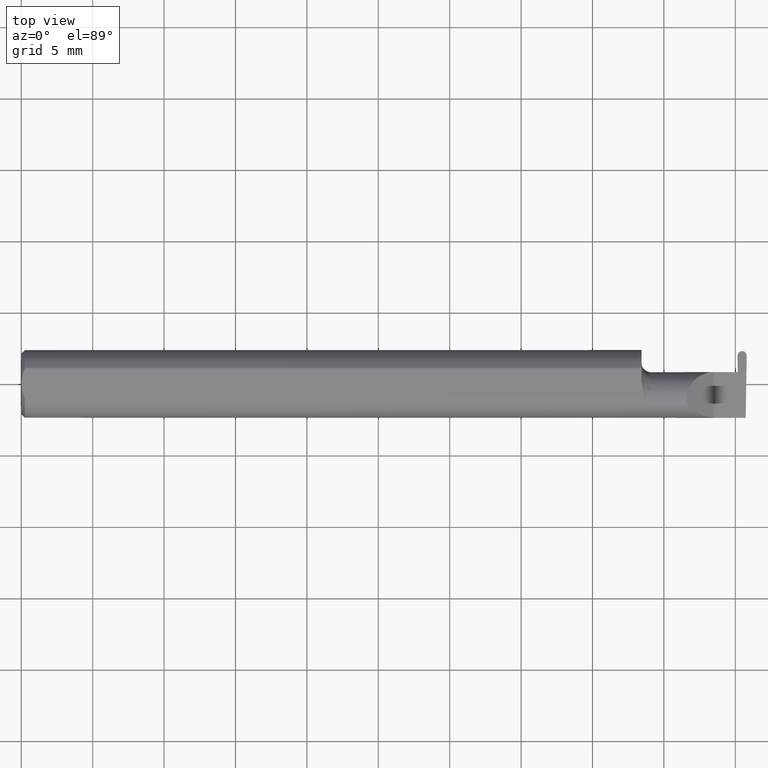
[diagram: clean part render]
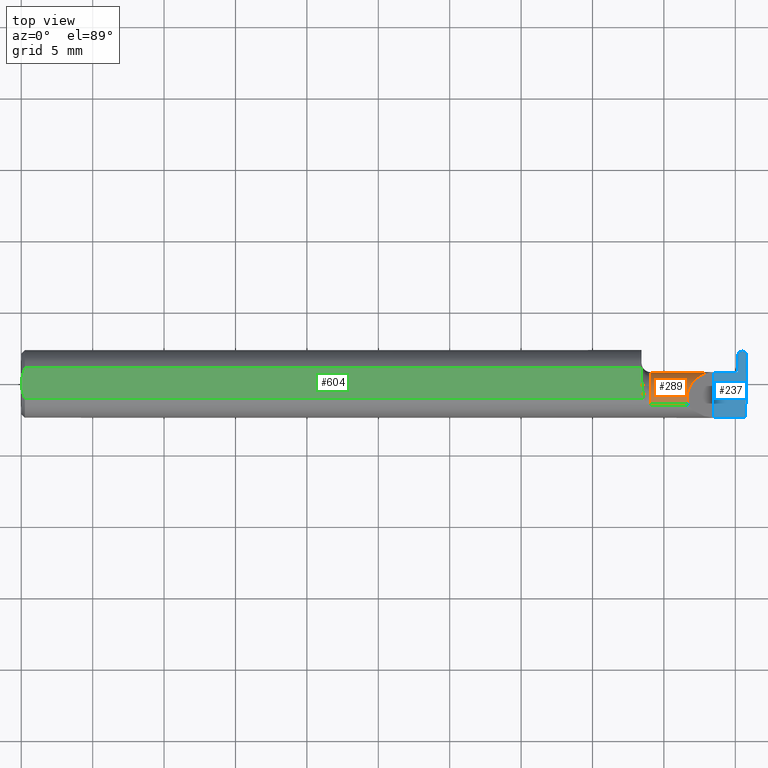
[diagram: same view with three faces highlighted in distinct colors, each labeled with its STEP entity id]
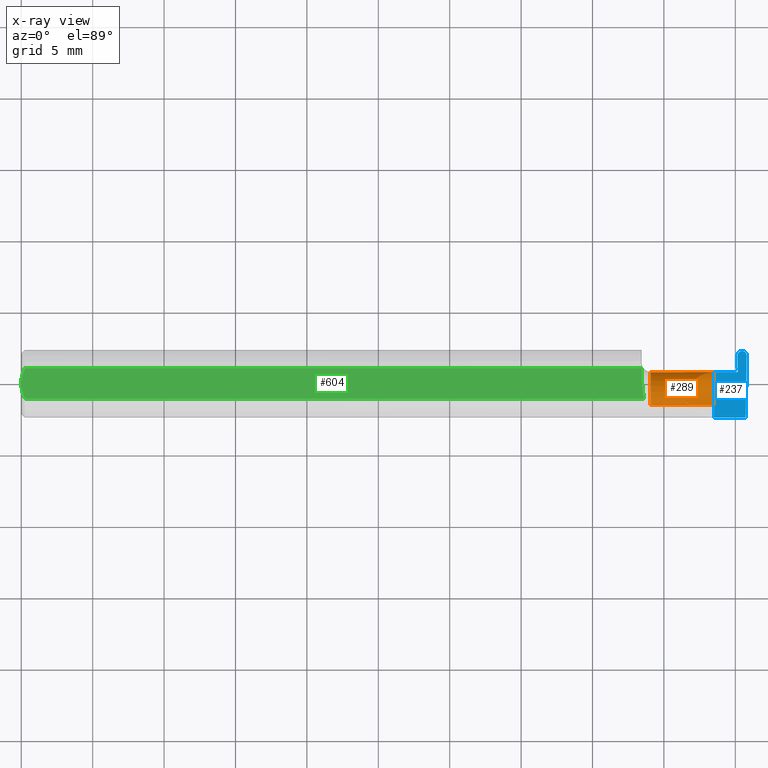
[diagram: x-ray of the same camera — body ghosted, the three highlighted faces saturated]
A machine part, top view with three faces highlighted in distinct colors.
The next image is the same camera in x-ray (body ghosted, the three faces saturated) — at least one of them is partly hidden behind the body in this view.
Their STEP definitions:

[orange] entity #289 — the highlighted cylindrical surface (edge-blend (fillet) strip) has radius 1.905 mm, axis along (-1, -0, -0).
#11 = VERTEX_POINT ( 'NONE', #413 ) ;
#35 = ORIENTED_EDGE ( 'NONE', *, *, #66, .F. ) ;
#37 = CARTESIAN_POINT ( 'NONE',  ( 1.709999999999999964, 0.03239999999999998437, 3.551475717527338624E-17 ) ) ;
#38 = CARTESIAN_POINT ( 'NONE',  ( 1.969248479888576320, 0.03239999999999999825, 0.000000000000000000 ) ) ;
#53 = VERTEX_POINT ( 'NONE', #203 ) ;
#66 = EDGE_CURVE ( 'NONE', #377, #362, #625, .T. ) ;
#71 = CARTESIAN_POINT ( 'NONE',  ( 1.734999999999999876, -0.05810704225352093799, 0.07337936794867844226 ) ) ;
#72 = CARTESIAN_POINT ( 'NONE',  ( 1.975446786689251333, 0.03221730376948541558, -0.005231735530809524318 ) ) ;
#90 = CARTESIAN_POINT ( 'NONE',  ( 1.910000000000000142, 0.03240000000000001906, 3.551475717527338624E-17 ) ) ;
#101 = AXIS2_PLACEMENT_3D ( 'NONE', #556, #457, #402 ) ;
#110 = DIRECTION ( 'NONE',  ( -1.000000000000000000, -0.000000000000000000, -0.000000000000000000 ) ) ;
#112 = CARTESIAN_POINT ( 'NONE',  ( 1.976921122959496957, 0.02931965133412154506, -0.04667009593691548441 ) ) ;
#114 = CARTESIAN_POINT ( 'NONE',  ( 1.995283749808152374, -0.04259999999999949244, -0.07500000000000002498 ) ) ;
#122 = EDGE_CURVE ( 'NONE', #53, #11, #281, .T. ) ;
#133 = CARTESIAN_POINT ( 'NONE',  ( 1.854736604999999816, -0.05810704225352100738, 0.07337936794867837287 ) ) ;
#137 = CARTESIAN_POINT ( 'NONE',  ( 1.977964271591899248, -0.001060451341131600630, -0.07500000000000006661 ) ) ;
#139 = VERTEX_POINT ( 'NONE', #435 ) ;
#160 = AXIS2_PLACEMENT_3D ( 'NONE', #243, #444, #177 ) ;
#177 = DIRECTION ( 'NONE',  ( 0.000000000000000000, -1.000000000000000000, 0.000000000000000000 ) ) ;
#184 = CARTESIAN_POINT ( 'NONE',  ( 1.969065783658062951, 0.03221730376948678254, -0.005231735530810288463 ) ) ;
#190 = CARTESIAN_POINT ( 'NONE',  ( 1.969065783658062951, 0.03221730376948678254, -0.005231735530810288463 ) ) ;
#198 = ORIENTED_EDGE ( 'NONE', *, *, #617, .F. ) ;
#203 = CARTESIAN_POINT ( 'NONE',  ( 1.995283749808152374, -0.04259999999999949244, -0.07500000000000002498 ) ) ;
#205 = VECTOR ( 'NONE', #110, 39.37007874015748143 ) ;
#243 = CARTESIAN_POINT ( 'NONE',  ( 1.734999999999999876, -0.04260000000000008225, 0.000000000000000000 ) ) ;
#260 = B_SPLINE_CURVE_WITH_KNOTS ( 'NONE', 3,
 ( #190, #318, #410, #38 ),
 .UNSPECIFIED., .F., .F.,
 ( 4, 4 ),
 ( 0.000000000000000000, 1.000000000000000000 ),
 .UNSPECIFIED. ) ;
#267 = CARTESIAN_POINT ( 'NONE',  ( 1.995069675717878299, -0.05810704225352097962, -0.07337936794867837287 ) ) ;
#270 =( BOUNDED_CURVE ( )  B_SPLINE_CURVE ( 3, ( #311, #302, #366, #461 ),
 .UNSPECIFIED., .F., .T. ) 
 B_SPLINE_CURVE_WITH_KNOTS ( ( 4, 4 ),
 ( 6.074922494366329140, 7.853981633974482790 ),
 .UNSPECIFIED. ) 
 CURVE ( )  GEOMETRIC_REPRESENTATION_ITEM ( )  RATIONAL_B_SPLINE_CURVE ( ( 1.000000000000000000, 0.7531850099525143616, 0.7531850099525143616, 1.000000000000000000 ) ) 
 REPRESENTATION_ITEM ( '' )  );
#281 = LINE ( 'NONE', #390, #205 ) ;
#282 = VERTEX_POINT ( 'NONE', #454 ) ;
#284 = EDGE_CURVE ( 'NONE', #535, #282, #530, .T. ) ;
#288 = ORIENTED_EDGE ( 'NONE', *, *, #401, .T. ) ;
#289 = ADVANCED_FACE ( 'NONE', ( #395 ), #353, .T. ) ;
#300 = DIRECTION ( 'NONE',  ( 1.000000000000000000, 1.613967815530507848E-16, 0.000000000000000000 ) ) ;
#302 = CARTESIAN_POINT ( 'NONE',  ( 1.825958805822864628, -0.007655250284932180876, 0.08404119417713473705 ) ) ;
#311 = CARTESIAN_POINT ( 'NONE',  ( 1.836620632051321200, -0.05810704225352119473, 0.07337936794867828960 ) ) ;
#318 = CARTESIAN_POINT ( 'NONE',  ( 1.969126682401567408, 0.03227820251299119009, -0.003487823687206865336 ) ) ;
#341 = CARTESIAN_POINT ( 'NONE',  ( 1.975446786689251333, 0.03221730376948541558, -0.005231735530809524318 ) ) ;
#353 = CYLINDRICAL_SURFACE ( 'NONE', #101, 0.07500000000000006661 ) ;
#356 = LINE ( 'NONE', #37, #650 ) ;
#362 = VERTEX_POINT ( 'NONE', #184 ) ;
#364 = DIRECTION ( 'NONE',  ( -1.000000000000000000, -1.613967815530507848E-16, -0.000000000000000000 ) ) ;
#366 = CARTESIAN_POINT ( 'NONE',  ( 1.858433946715231766, 0.03240000000000000518, 0.05156605328476855654 ) ) ;
#371 = CARTESIAN_POINT ( 'NONE',  ( 1.836620632051321200, -0.05810704225352119473, 0.07337936794867828960 ) ) ;
#377 = VERTEX_POINT ( 'NONE', #341 ) ;
#389 = CARTESIAN_POINT ( 'NONE',  ( 1.995121087504817758, -0.05300374992736033020, -0.07445783144524582842 ) ) ;
#390 = CARTESIAN_POINT ( 'NONE',  ( 2.115884466375952844, -0.04259999999999949244, -0.07500000000000002498 ) ) ;
#393 = ORIENTED_EDGE ( 'NONE', *, *, #458, .T. ) ;
#395 = FACE_OUTER_BOUND ( 'NONE', #660, .T. ) ;
#401 = EDGE_CURVE ( 'NONE', #691, #455, #270, .T. ) ;
#402 = DIRECTION ( 'NONE',  ( 0.000000000000000000, -1.000000000000000000, 0.000000000000000000 ) ) ;
#410 = CARTESIAN_POINT ( 'NONE',  ( 1.969187581145071642, 0.03233910125649559070, -0.001743911843603432451 ) ) ;
#412 = CARTESIAN_POINT ( 'NONE',  ( 1.854736604999999816, -0.05810704225352100738, -0.07337936794867837287 ) ) ;
#413 = CARTESIAN_POINT ( 'NONE',  ( 1.978015756548945348, -0.04260000000000003367, -0.07500000000000003886 ) ) ;
#414 =( BOUNDED_CURVE ( )  B_SPLINE_CURVE ( 3, ( #669, #137, #112, #72 ),
 .UNSPECIFIED., .F., .T. ) 
 B_SPLINE_CURVE_WITH_KNOTS ( ( 4, 4 ),
 ( 3.176499238629675315, 4.677482395344795485 ),
 .UNSPECIFIED. ) 
 CURVE ( )  GEOMETRIC_REPRESENTATION_ITEM ( )  RATIONAL_B_SPLINE_CURVE ( ( 1.000000000000000000, 0.8209024677461143060, 0.8209024677461143060, 1.000000000000000000 ) ) 
 REPRESENTATION_ITEM ( '' )  );
#425 = CARTESIAN_POINT ( 'NONE',  ( 1.709999999999999964, 0.03221730376948644947, -0.005231735530814581037 ) ) ;
#435 = CARTESIAN_POINT ( 'NONE',  ( 1.995069675717878299, -0.05810704225352097962, -0.07337936794867837287 ) ) ;
#440 = ORIENTED_EDGE ( 'NONE', *, *, #696, .F. ) ;
#444 = DIRECTION ( 'NONE',  ( -1.000000000000000000, -1.613967815530507848E-16, -0.000000000000000000 ) ) ;
#454 = CARTESIAN_POINT ( 'NONE',  ( 1.734999999999999876, -0.05810704225352095881, -0.07337936794867842838 ) ) ;
#455 = VERTEX_POINT ( 'NONE', #90 ) ;
#457 = DIRECTION ( 'NONE',  ( -1.000000000000000000, -1.613967815530507848E-16, -0.000000000000000000 ) ) ;
#458 = EDGE_CURVE ( 'NONE', #535, #691, #471, .T. ) ;
#461 = CARTESIAN_POINT ( 'NONE',  ( 1.910000000000000142, 0.03240000000000001906, 3.551475717527338624E-17 ) ) ;
#467 = EDGE_CURVE ( 'NONE', #455, #637, #356, .T. ) ;
#471 = LINE ( 'NONE', #133, #609 ) ;
#476 = ORIENTED_EDGE ( 'NONE', *, *, #122, .F. ) ;
#510 = ORIENTED_EDGE ( 'NONE', *, *, #622, .T. ) ;
#511 = DIRECTION ( 'NONE',  ( 1.000000000000000000, 1.613967815530507848E-16, 0.000000000000000000 ) ) ;
#526 = EDGE_CURVE ( 'NONE', #11, #377, #414, .T. ) ;
#530 = CIRCLE ( 'NONE', #160, 0.07500000000000010825 ) ;
#535 = VERTEX_POINT ( 'NONE', #71 ) ;
#540 = ORIENTED_EDGE ( 'NONE', *, *, #284, .F. ) ;
#553 = VECTOR ( 'NONE', #364, 39.37007874015748143 ) ;
#554 =( BOUNDED_CURVE ( )  B_SPLINE_CURVE ( 3, ( #267, #389, #690, #114 ),
 .UNSPECIFIED., .F., .T. ) 
 B_SPLINE_CURVE_WITH_KNOTS ( ( 4, 4 ),
 ( 0.2552020043920386616, 0.4634648172053001391 ),
 .UNSPECIFIED. ) 
 CURVE ( )  GEOMETRIC_REPRESENTATION_ITEM ( )  RATIONAL_B_SPLINE_CURVE ( ( 1.000000000000000000, 0.9963888149483992596, 0.9963888149483992596, 1.000000000000000000 ) ) 
 REPRESENTATION_ITEM ( '' )  );
#556 = CARTESIAN_POINT ( 'NONE',  ( 1.709999999999999964, -0.04260000000000008225, 0.000000000000000000 ) ) ;
#584 = ORIENTED_EDGE ( 'NONE', *, *, #526, .F. ) ;
#609 = VECTOR ( 'NONE', #511, 39.37007874015748143 ) ;
#617 = EDGE_CURVE ( 'NONE', #362, #637, #260, .T. ) ;
#622 = EDGE_CURVE ( 'NONE', #139, #282, #674, .T. ) ;
#625 = LINE ( 'NONE', #425, #553 ) ;
#637 = VERTEX_POINT ( 'NONE', #683 ) ;
#650 = VECTOR ( 'NONE', #300, 39.37007874015748143 ) ;
#654 = ORIENTED_EDGE ( 'NONE', *, *, #467, .T. ) ;
#660 = EDGE_LOOP ( 'NONE', ( #510, #540, #393, #288, #654, #198, #35, #584, #476, #440 ) ) ;
#669 = CARTESIAN_POINT ( 'NONE',  ( 1.978015756548945348, -0.04260000000000003367, -0.07500000000000003886 ) ) ;
#674 = LINE ( 'NONE', #412, #689 ) ;
#683 = CARTESIAN_POINT ( 'NONE',  ( 1.969248479888576320, 0.03239999999999999825, 0.000000000000000000 ) ) ;
#687 = DIRECTION ( 'NONE',  ( -1.000000000000000000, -1.613967815530507848E-16, -0.000000000000000000 ) ) ;
#689 = VECTOR ( 'NONE', #687, 39.37007874015748143 ) ;
#690 = CARTESIAN_POINT ( 'NONE',  ( 1.995192704155888785, -0.04781600192481490208, -0.07500000000000012212 ) ) ;
#691 = VERTEX_POINT ( 'NONE', #371 ) ;
#696 = EDGE_CURVE ( 'NONE', #139, #53, #554, .T. ) ;

[blue] entity #237 — the highlighted planar face has unit normal (-0, 0, -1).
#6 = CARTESIAN_POINT ( 'NONE',  ( 1.974486369625657378, 0.07677130609030106967, 0.000000000000000000 ) ) ;
#10 = DIRECTION ( 'NONE',  ( -0.000000000000000000, 1.000000000000000000, -0.000000000000000000 ) ) ;
#17 = LINE ( 'NONE', #657, #125 ) ;
#27 = LINE ( 'NONE', #370, #172 ) ;
#34 = EDGE_CURVE ( 'NONE', #57, #470, #27, .T. ) ;
#37 = CARTESIAN_POINT ( 'NONE',  ( 1.709999999999999964, 0.03239999999999998437, 3.551475717527338624E-17 ) ) ;
#43 = VERTEX_POINT ( 'NONE', #319 ) ;
#54 = DIRECTION ( 'NONE',  ( -1.224646799147358877E-16, 0.000000000000000000, -1.000000000000000000 ) ) ;
#57 = VERTEX_POINT ( 'NONE', #417 ) ;
#67 = CARTESIAN_POINT ( 'NONE',  ( 1.999986840374342822, 0.07677130609030106967, 0.000000000000000000 ) ) ;
#80 = CARTESIAN_POINT ( 'NONE',  ( 1.975260873654413052, 0.03239999999999999825, 0.000000000000000000 ) ) ;
#83 = LINE ( 'NONE', #80, #335 ) ;
#90 = CARTESIAN_POINT ( 'NONE',  ( 1.910000000000000142, 0.03240000000000001906, 3.551475717527338624E-17 ) ) ;
#108 = VERTEX_POINT ( 'NONE', #223 ) ;
#118 = ORIENTED_EDGE ( 'NONE', *, *, #283, .T. ) ;
#120 =( BOUNDED_CURVE ( )  B_SPLINE_CURVE ( 3, ( #67, #552, #407, #350 ),
 .UNSPECIFIED., .F., .T. ) 
 B_SPLINE_CURVE_WITH_KNOTS ( ( 4, 4 ),
 ( 1.672436806532649367, 3.247686724355377752 ),
 .UNSPECIFIED. ) 
 CURVE ( )  GEOMETRIC_REPRESENTATION_ITEM ( )  RATIONAL_B_SPLINE_CURVE ( ( 1.000000000000000000, 0.8036869647627060687, 0.8036869647627060687, 1.000000000000000000 ) ) 
 REPRESENTATION_ITEM ( '' )  );
#125 = VECTOR ( 'NONE', #236, 39.37007874015748143 ) ;
#134 = ORIENTED_EDGE ( 'NONE', *, *, #384, .F. ) ;
#140 = EDGE_CURVE ( 'NONE', #108, #470, #396, .T. ) ;
#148 = EDGE_CURVE ( 'NONE', #487, #455, #157, .T. ) ;
#151 = ORIENTED_EDGE ( 'NONE', *, *, #588, .F. ) ;
#157 = LINE ( 'NONE', #381, #355 ) ;
#158 = ORIENTED_EDGE ( 'NONE', *, *, #642, .F. ) ;
#168 = VERTEX_POINT ( 'NONE', #226 ) ;
#170 = CARTESIAN_POINT ( 'NONE',  ( 1.987065021309431190, 0.09039999999999999425, 0.000000000000000000 ) ) ;
#172 = VECTOR ( 'NONE', #475, 39.37007874015747433 ) ;
#186 = VERTEX_POINT ( 'NONE', #376 ) ;
#202 = LINE ( 'NONE', #619, #506 ) ;
#220 = DIRECTION ( 'NONE',  ( -1.000000000000000000, 0.000000000000000000, 1.224646799147358877E-16 ) ) ;
#223 = CARTESIAN_POINT ( 'NONE',  ( 1.987065021309431190, 0.09039999999999999425, 0.000000000000000000 ) ) ;
#226 = CARTESIAN_POINT ( 'NONE',  ( 1.997012998164632958, -0.09360000000000001652, 0.000000000000000000 ) ) ;
#236 = DIRECTION ( 'NONE',  ( -1.000000000000000000, -0.000000000000000000, -0.000000000000000000 ) ) ;
#237 = ADVANCED_FACE ( 'NONE', ( #266 ), #638, .F. ) ;
#239 = DIRECTION ( 'NONE',  ( 1.000000000000000000, -0.000000000000000000, -0.000000000000000000 ) ) ;
#266 = FACE_OUTER_BOUND ( 'NONE', #373, .T. ) ;
#283 = EDGE_CURVE ( 'NONE', #43, #186, #120, .T. ) ;
#293 = AXIS2_PLACEMENT_3D ( 'NONE', #536, #54, #220 ) ;
#300 = DIRECTION ( 'NONE',  ( 1.000000000000000000, 1.613967815530507848E-16, 0.000000000000000000 ) ) ;
#301 = EDGE_CURVE ( 'NONE', #168, #487, #17, .T. ) ;
#306 = CARTESIAN_POINT ( 'NONE',  ( 1.910000000000000142, -0.09360000000000005815, 1.102182119232621301E-17 ) ) ;
#310 = ORIENTED_EDGE ( 'NONE', *, *, #148, .F. ) ;
#319 = CARTESIAN_POINT ( 'NONE',  ( 1.999986840374342822, 0.07677130609030106967, 0.000000000000000000 ) ) ;
#333 = CARTESIAN_POINT ( 'NONE',  ( 1.979564206858069220, 0.09040000000000021629, 9.406295376684195230E-19 ) ) ;
#335 = VECTOR ( 'NONE', #420, 39.37007874015748143 ) ;
#350 = CARTESIAN_POINT ( 'NONE',  ( 1.987408188690569011, 0.09039999999999999425, 0.000000000000000000 ) ) ;
#355 = VECTOR ( 'NONE', #10, 39.37007874015748143 ) ;
#356 = LINE ( 'NONE', #37, #650 ) ;
#370 = CARTESIAN_POINT ( 'NONE',  ( 1.974475153926879667, 0.07741385304294044756, 0.000000000000000000 ) ) ;
#373 = EDGE_LOOP ( 'NONE', ( #134, #474, #459, #151, #684, #310, #519, #158, #118 ) ) ;
#376 = CARTESIAN_POINT ( 'NONE',  ( 1.987408188690569011, 0.09039999999999999425, 0.000000000000000000 ) ) ;
#381 = CARTESIAN_POINT ( 'NONE',  ( 1.910000000000000142, -0.2500000000000000555, 1.102182119232621301E-17 ) ) ;
#384 = EDGE_CURVE ( 'NONE', #108, #186, #661, .T. ) ;
#394 = VECTOR ( 'NONE', #239, 39.37007874015748143 ) ;
#396 =( BOUNDED_CURVE ( )  B_SPLINE_CURVE ( 3, ( #170, #333, #431, #6 ),
 .UNSPECIFIED., .F., .T. ) 
 B_SPLINE_CURVE_WITH_KNOTS ( ( 4, 4 ),
 ( 6.177091236413978947, 7.752341154236730425 ),
 .UNSPECIFIED. ) 
 CURVE ( )  GEOMETRIC_REPRESENTATION_ITEM ( )  RATIONAL_B_SPLINE_CURVE ( ( 1.000000000000000000, 0.8036869647627007396, 0.8036869647627007396, 1.000000000000000000 ) ) 
 REPRESENTATION_ITEM ( '' )  );
#398 = CARTESIAN_POINT ( 'NONE',  ( -3.937007874019685528E-05, 0.09039999999999999425, 0.000000000000000000 ) ) ;
#407 = CARTESIAN_POINT ( 'NONE',  ( 1.994909003141931425, 0.09040000000000000813, -9.406295376684357008E-19 ) ) ;
#417 = CARTESIAN_POINT ( 'NONE',  ( 1.975260873654413052, 0.03239999999999999825, 0.000000000000000000 ) ) ;
#420 = DIRECTION ( 'NONE',  ( 1.000000000000000000, 7.099522513569547654E-16, -0.000000000000000000 ) ) ;
#431 = CARTESIAN_POINT ( 'NONE',  ( 1.974347145889773225, 0.08474742857719380629, 1.579535239246386693E-18 ) ) ;
#455 = VERTEX_POINT ( 'NONE', #90 ) ;
#459 = ORIENTED_EDGE ( 'NONE', *, *, #34, .F. ) ;
#467 = EDGE_CURVE ( 'NONE', #455, #637, #356, .T. ) ;
#470 = VERTEX_POINT ( 'NONE', #507 ) ;
#474 = ORIENTED_EDGE ( 'NONE', *, *, #140, .T. ) ;
#475 = DIRECTION ( 'NONE',  ( -0.01745240643727524049, 0.9998476951563914916, -0.000000000000000000 ) ) ;
#487 = VERTEX_POINT ( 'NONE', #306 ) ;
#506 = VECTOR ( 'NONE', #680, 39.37007874015747433 ) ;
#507 = CARTESIAN_POINT ( 'NONE',  ( 1.974486369625657378, 0.07677130609030106967, 0.000000000000000000 ) ) ;
#519 = ORIENTED_EDGE ( 'NONE', *, *, #301, .F. ) ;
#536 = CARTESIAN_POINT ( 'NONE',  ( 2.000000000000000000, -0.2500000000000000555, 0.000000000000000000 ) ) ;
#552 = CARTESIAN_POINT ( 'NONE',  ( 2.000126064110226753, 0.08474742857719365363, -1.579535239246384574E-18 ) ) ;
#588 = EDGE_CURVE ( 'NONE', #637, #57, #83, .T. ) ;
#619 = CARTESIAN_POINT ( 'NONE',  ( 1.999998056073120534, 0.07741385304294044756, 0.000000000000000000 ) ) ;
#637 = VERTEX_POINT ( 'NONE', #683 ) ;
#638 = PLANE ( 'NONE',  #293 ) ;
#642 = EDGE_CURVE ( 'NONE', #43, #168, #202, .T. ) ;
#650 = VECTOR ( 'NONE', #300, 39.37007874015748143 ) ;
#657 = CARTESIAN_POINT ( 'NONE',  ( 2.999519565323742037E-32, -0.09359999999999998876, 2.449293598294716768E-16 ) ) ;
#661 = LINE ( 'NONE', #398, #394 ) ;
#680 = DIRECTION ( 'NONE',  ( -0.01745240643727442170, -0.9998476951563914916, 0.000000000000000000 ) ) ;
#683 = CARTESIAN_POINT ( 'NONE',  ( 1.969248479888576320, 0.03239999999999999825, 0.000000000000000000 ) ) ;
#684 = ORIENTED_EDGE ( 'NONE', *, *, #467, .F. ) ;

[green] entity #604 — the highlighted planar face has unit normal (0, 0, 1).
#42 = CARTESIAN_POINT ( 'NONE',  ( 1.714570820222980574, -0.02392027542784330024, 0.08359999999999992437 ) ) ;
#70 = CARTESIAN_POINT ( 'NONE',  ( 0.0009807498324118613890, 0.01453516766257752398, 0.08359999999999992437 ) ) ;
#74 = CARTESIAN_POINT ( 'NONE',  ( 0.000000000000000000, 0.000000000000000000, 0.08359999999999991049 ) ) ;
#82 = CARTESIAN_POINT ( 'NONE',  ( 0.01000000000000016674, -0.04209513035969864037, 0.08359999999999988274 ) ) ;
#88 = CARTESIAN_POINT ( 'NONE',  ( 1.709999999999999964, 0.003280657920457247939, 0.08359999999999991049 ) ) ;
#91 = DIRECTION ( 'NONE',  ( 0.000000000000000000, 0.000000000000000000, 1.000000000000000000 ) ) ;
#95 = VERTEX_POINT ( 'NONE', #648 ) ;
#98 = ORIENTED_EDGE ( 'NONE', *, *, #673, .F. ) ;
#115 = DIRECTION ( 'NONE',  ( 1.000000000000000000, 0.000000000000000000, 0.000000000000000000 ) ) ;
#117 = DIRECTION ( 'NONE',  ( -1.000000000000000000, -0.000000000000000000, -0.000000000000000000 ) ) ;
#123 = CARTESIAN_POINT ( 'NONE',  ( 0.000000000000000000, 0.04209513035969864037, 0.08359999999999988274 ) ) ;
#128 = LINE ( 'NONE', #123, #292 ) ;
#131 = EDGE_CURVE ( 'NONE', #464, #269, #164, .T. ) ;
#145 = DIRECTION ( 'NONE',  ( 1.000000000000000000, 0.000000000000000000, -0.000000000000000000 ) ) ;
#149 = CARTESIAN_POINT ( 'NONE',  ( 0.000000000000000000, 0.000000000000000000, 0.08359999999999991049 ) ) ;
#164 = LINE ( 'NONE', #482, #658 ) ;
#180 = CARTESIAN_POINT ( 'NONE',  ( 0.01000000000000016674, 0.04209513035969864037, 0.08359999999999988274 ) ) ;
#181 = VECTOR ( 'NONE', #363, 39.37007874015748143 ) ;
#197 = LINE ( 'NONE', #521, #181 ) ;
#249 = CARTESIAN_POINT ( 'NONE',  ( 0.01000000000000016674, 0.04209513035969864037, 0.08359999999999988274 ) ) ;
#255 = ORIENTED_EDGE ( 'NONE', *, *, #131, .T. ) ;
#257 = CARTESIAN_POINT ( 'NONE',  ( 2.191425808082400728, 0.09360000000000005815, 0.08359999999999991049 ) ) ;
#269 = VERTEX_POINT ( 'NONE', #452 ) ;
#292 = VECTOR ( 'NONE', #117, 39.37007874015748143 ) ;
#297 = CARTESIAN_POINT ( 'NONE',  ( 0.004492168231814808177, 0.02859366993844194779, 0.08359999999999991049 ) ) ;
#298 = EDGE_CURVE ( 'NONE', #357, #469, #406, .T. ) ;
#303 = PLANE ( 'NONE',  #468 ) ;
#339 = ORIENTED_EDGE ( 'NONE', *, *, #348, .T. ) ;
#348 = EDGE_CURVE ( 'NONE', #95, #469, #128, .T. ) ;
#357 = VERTEX_POINT ( 'NONE', #74 ) ;
#361 = CARTESIAN_POINT ( 'NONE',  ( 0.01000000000000016674, -0.04209513035969864037, 0.08359999999999988274 ) ) ;
#363 = DIRECTION ( 'NONE',  ( -1.613967815530507848E-16, 1.000000000000000000, 0.000000000000000000 ) ) ;
#365 = EDGE_LOOP ( 'NONE', ( #255, #592, #573, #339, #601, #98 ) ) ;
#406 = B_SPLINE_CURVE_WITH_KNOTS ( 'NONE', 3,
 ( #613, #502, #70, #297, #549, #180 ),
 .UNSPECIFIED., .F., .F.,
 ( 4, 2, 4 ),
 ( 0.001744210492668864416, 0.002295110172257193264, 0.002846009851845522111 ),
 .UNSPECIFIED. ) ;
#424 = CARTESIAN_POINT ( 'NONE',  ( 0.004072204388638868758, -0.02891446873729324601, 0.08359999999999991049 ) ) ;
#452 = CARTESIAN_POINT ( 'NONE',  ( 1.716129652885479473, -0.04209513035970122857, 0.08359999999999991049 ) ) ;
#464 = VERTEX_POINT ( 'NONE', #82 ) ;
#468 = AXIS2_PLACEMENT_3D ( 'NONE', #257, #91, #145 ) ;
#469 = VERTEX_POINT ( 'NONE', #249 ) ;
#482 = CARTESIAN_POINT ( 'NONE',  ( 0.000000000000000000, -0.04209513035969864037, 0.08359999999999988274 ) ) ;
#495 = B_SPLINE_CURVE_WITH_KNOTS ( 'NONE', 3,
 ( #670, #576, #42, #572, #88, #565 ),
 .UNSPECIFIED., .F., .F.,
 ( 4, 2, 4 ),
 ( 0.009672910729349594450, 0.01035804079918437037, 0.01104317086901914803 ),
 .UNSPECIFIED. ) ;
#502 = CARTESIAN_POINT ( 'NONE',  ( 2.476070721796526867E-17, 0.007317304829308955878, 0.08359999999999991049 ) ) ;
#504 = CARTESIAN_POINT ( 'NONE',  ( 1.709999999999999964, 0.01227294415283377085, 0.08359999999999991049 ) ) ;
#521 = CARTESIAN_POINT ( 'NONE',  ( 1.709999999999999964, 0.09359999999999997489, 0.08359999999999991049 ) ) ;
#524 = FACE_OUTER_BOUND ( 'NONE', #365, .T. ) ;
#547 = VERTEX_POINT ( 'NONE', #504 ) ;
#549 = CARTESIAN_POINT ( 'NONE',  ( 0.007036739039485840133, 0.03550621559607060329, 0.08359999999999991049 ) ) ;
#559 = EDGE_CURVE ( 'NONE', #547, #95, #197, .T. ) ;
#561 = B_SPLINE_CURVE_WITH_KNOTS ( 'NONE', 3,
 ( #361, #424, #632, #149 ),
 .UNSPECIFIED., .F., .F.,
 ( 4, 4 ),
 ( 0.0006429768761302093617, 0.001744210492668864416 ),
 .UNSPECIFIED. ) ;
#565 = CARTESIAN_POINT ( 'NONE',  ( 1.709999999999999964, 0.01227294415283377085, 0.08359999999999991049 ) ) ;
#572 = CARTESIAN_POINT ( 'NONE',  ( 1.711463898467977307, -0.005727447913487381317, 0.08359999999999991049 ) ) ;
#573 = ORIENTED_EDGE ( 'NONE', *, *, #559, .T. ) ;
#576 = CARTESIAN_POINT ( 'NONE',  ( 1.716082007218903582, -0.03301619840524124688, 0.08359999999999991049 ) ) ;
#580 = EDGE_CURVE ( 'NONE', #269, #547, #495, .T. ) ;
#592 = ORIENTED_EDGE ( 'NONE', *, *, #580, .T. ) ;
#601 = ORIENTED_EDGE ( 'NONE', *, *, #298, .F. ) ;
#604 = ADVANCED_FACE ( 'NONE', ( #524 ), #303, .T. ) ;
#613 = CARTESIAN_POINT ( 'NONE',  ( 0.000000000000000000, 0.000000000000000000, 0.08359999999999991049 ) ) ;
#632 = CARTESIAN_POINT ( 'NONE',  ( 2.387527623501553705E-17, -0.01462709520273675068, 0.08359999999999991049 ) ) ;
#648 = CARTESIAN_POINT ( 'NONE',  ( 1.709999999999999964, 0.04209513035969864037, 0.08359999999999988274 ) ) ;
#658 = VECTOR ( 'NONE', #115, 39.37007874015748143 ) ;
#670 = CARTESIAN_POINT ( 'NONE',  ( 1.716129652885479473, -0.04209513035970122857, 0.08359999999999991049 ) ) ;
#673 = EDGE_CURVE ( 'NONE', #464, #357, #561, .T. ) ;